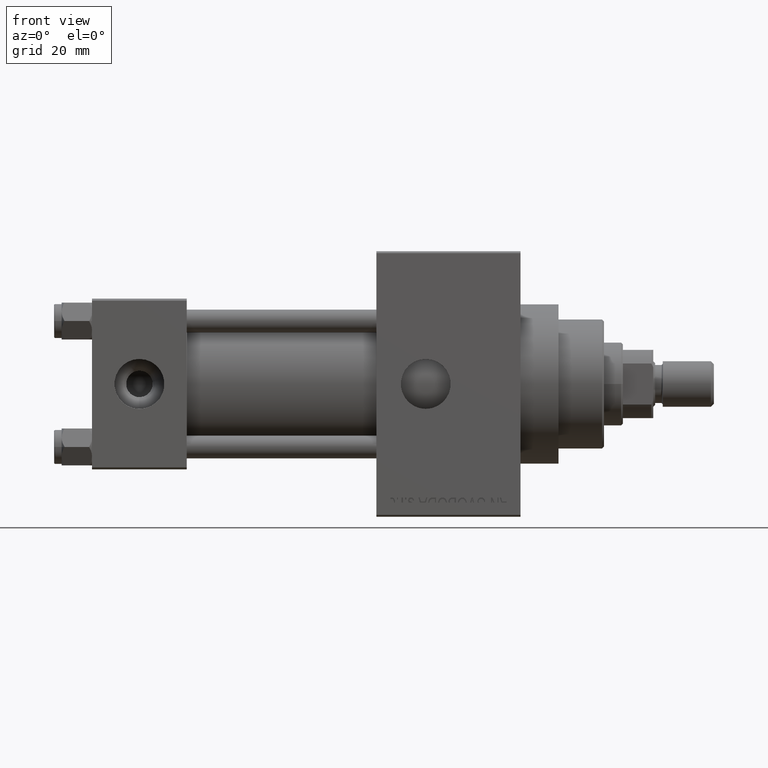
[diagram: clean part render]
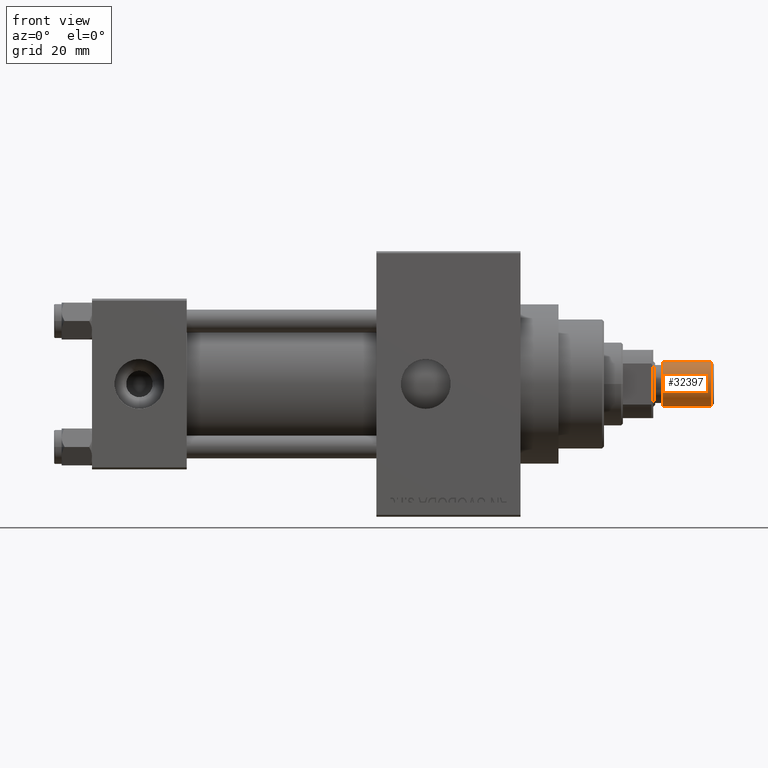
[diagram: same view with one face highlighted and labeled with its STEP entity id]
A machine part, front view. The second image highlights one B-rep face of the part: STEP entity #32397.
In plain terms, the highlighted cylindrical surface (edge-blend (fillet) strip) has radius 6 mm, axis along (1, -0, -0).
Its self-contained STEP definition (entity closure, byte-faithful):
#2492 = DIRECTION ( 'NONE',  ( -0.000000000000000000, -0.000000000000000000, 1.000000000000000000 ) ) ;
#3634 = DIRECTION ( 'NONE',  ( -0.000000000000000000, -0.000000000000000000, -1.000000000000000000 ) ) ;
#6271 = AXIS2_PLACEMENT_3D ( 'NONE', #20484, #23869, #45322 ) ;
#6764 = CARTESIAN_POINT ( 'NONE',  ( 6.000000000000000888, 7.347880794884120722E-16, 13.50000000000000000 ) ) ;
#8525 = CIRCLE ( 'NONE', #36200, 6.000000000000000888 ) ;
#8583 = EDGE_CURVE ( 'NONE', #17303, #37371, #46969, .T. ) ;
#10422 = DIRECTION ( 'NONE',  ( 1.000000000000000000, 0.000000000000000000, 0.000000000000000000 ) ) ;
#11095 = CYLINDRICAL_SURFACE ( 'NONE', #44682, 6.000000000000000888 ) ;
#11518 = CARTESIAN_POINT ( 'NONE',  ( -6.000000000000000888, 0.000000000000000000, 0.8000000000000055955 ) ) ;
#11546 = CARTESIAN_POINT ( 'NONE',  ( 6.000000000000000888, 7.347880794884120722E-16, 13.50000000000000000 ) ) ;
#13499 = DIRECTION ( 'NONE',  ( -0.000000000000000000, -0.000000000000000000, -1.000000000000000000 ) ) ;
#16306 = ORIENTED_EDGE ( 'NONE', *, *, #33174, .F. ) ;
#17303 = VERTEX_POINT ( 'NONE', #11546 ) ;
#17783 = VERTEX_POINT ( 'NONE', #29294 ) ;
#19777 = CARTESIAN_POINT ( 'NONE',  ( -6.000000000000000888, 0.000000000000000000, 13.50000000000000000 ) ) ;
#20484 = CARTESIAN_POINT ( 'NONE',  ( 0.000000000000000000, 0.000000000000000000, 13.50000000000000000 ) ) ;
#22400 = DIRECTION ( 'NONE',  ( -1.000000000000000000, 0.000000000000000000, 0.000000000000000000 ) ) ;
#23869 = DIRECTION ( 'NONE',  ( 0.000000000000000000, 0.000000000000000000, 1.000000000000000000 ) ) ;
#25425 = VECTOR ( 'NONE', #30625, 1000.000000000000000 ) ;
#26264 = CIRCLE ( 'NONE', #6271, 6.000000000000000888 ) ;
#26405 = CARTESIAN_POINT ( 'NONE',  ( 6.000000000000000888, 7.347880794884120722E-16, 0.8000000000000055955 ) ) ;
#27505 = VECTOR ( 'NONE', #13499, 1000.000000000000000 ) ;
#29294 = CARTESIAN_POINT ( 'NONE',  ( -6.000000000000000888, 0.000000000000000000, 13.50000000000000000 ) ) ;
#29395 = CARTESIAN_POINT ( 'NONE',  ( 0.000000000000000000, 0.000000000000000000, 13.50000000000000000 ) ) ;
#30625 = DIRECTION ( 'NONE',  ( -0.000000000000000000, -0.000000000000000000, -1.000000000000000000 ) ) ;
#31140 = EDGE_CURVE ( 'NONE', #39988, #37371, #8525, .T. ) ;
#31353 = EDGE_CURVE ( 'NONE', #17783, #39988, #34250, .T. ) ;
#31930 = ORIENTED_EDGE ( 'NONE', *, *, #8583, .F. ) ;
#32397 = ADVANCED_FACE ( 'NONE', ( #33487 ), #11095, .T. ) ;
#33174 = EDGE_CURVE ( 'NONE', #17783, #17303, #26264, .T. ) ;
#33487 = FACE_OUTER_BOUND ( 'NONE', #45819, .T. ) ;
#34250 = LINE ( 'NONE', #19777, #25425 ) ;
#35094 = ORIENTED_EDGE ( 'NONE', *, *, #31140, .T. ) ;
#35955 = CARTESIAN_POINT ( 'NONE',  ( 0.000000000000000000, 0.000000000000000000, 0.8000000000000055955 ) ) ;
#36187 = ORIENTED_EDGE ( 'NONE', *, *, #31353, .T. ) ;
#36200 = AXIS2_PLACEMENT_3D ( 'NONE', #35955, #2492, #10422 ) ;
#37371 = VERTEX_POINT ( 'NONE', #26405 ) ;
#39988 = VERTEX_POINT ( 'NONE', #11518 ) ;
#44682 = AXIS2_PLACEMENT_3D ( 'NONE', #29395, #3634, #22400 ) ;
#45322 = DIRECTION ( 'NONE',  ( 1.000000000000000000, 0.000000000000000000, 0.000000000000000000 ) ) ;
#45819 = EDGE_LOOP ( 'NONE', ( #31930, #16306, #36187, #35094 ) ) ;
#46969 = LINE ( 'NONE', #6764, #27505 ) ;